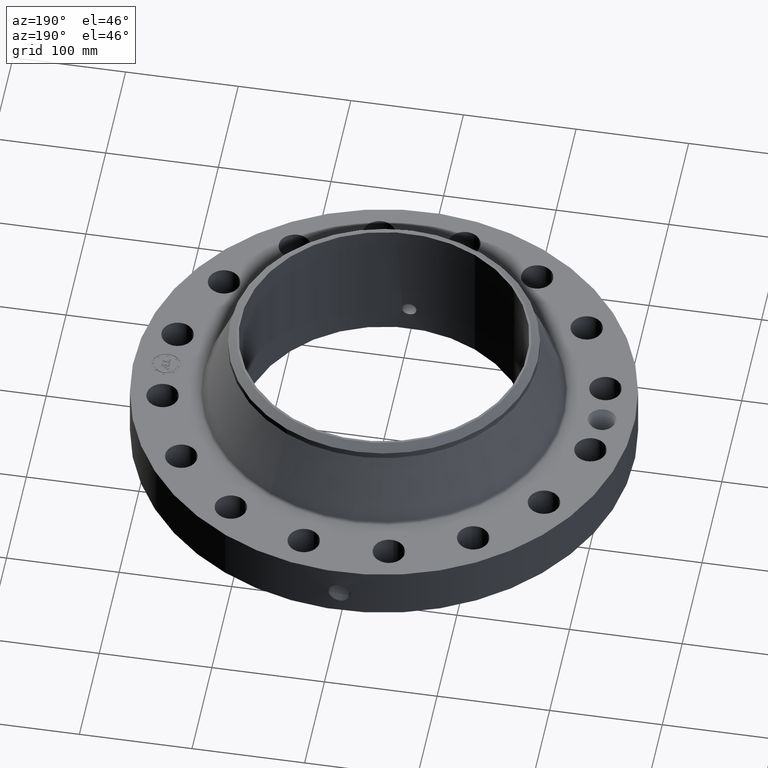
[diagram: clean part render]
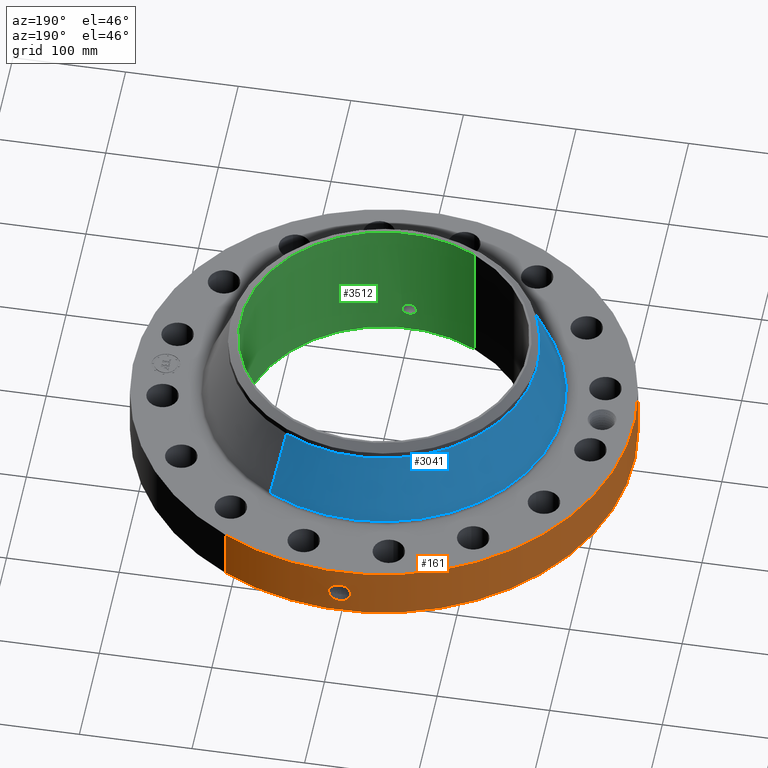
[diagram: same view with three faces highlighted in distinct colors, each labeled with its STEP entity id]
A machine part, auxiliary view with three faces highlighted in distinct colors.
Their STEP definitions:

[orange] entity #161 — the highlighted cylindrical surface (partial cylindrical patch) has radius 222.25 mm, axis along (0, 0, -1).
#38=AXIS2_PLACEMENT_3D('Cylinder Axis2P3D',#35,#36,#37) ;
#42=AXIS2_PLACEMENT_3D('Circle Axis2P3D',#40,#41,$) ;
#58=AXIS2_PLACEMENT_3D('Circle Axis2P3D',#56,#57,$) ;
#35=CARTESIAN_POINT('Axis2P3D Location',(0.,0.,2.34000000001)) ;
#40=CARTESIAN_POINT('Axis2P3D Location',(0.,0.,0.0600000000002)) ;
#44=CARTESIAN_POINT('Vertex',(-4.1949734628,-7.67884741657,0.0600000000002)) ;
#46=CARTESIAN_POINT('Vertex',(4.1949734628,7.67884741657,0.0600000000002)) ;
#49=CARTESIAN_POINT('Line Origine',(-4.1949734628,-7.67884741657,1.)) ;
#53=CARTESIAN_POINT('Vertex',(-4.1949734628,-7.67884741657,1.94000000001)) ;
#56=CARTESIAN_POINT('Axis2P3D Location',(0.,0.,1.94000000001)) ;
#60=CARTESIAN_POINT('Vertex',(4.1949734628,7.67884741657,1.94000000001)) ;
#63=CARTESIAN_POINT('Line Origine',(4.1949734628,7.67884741657,1.)) ;
#75=CARTESIAN_POINT('Control Point',(-0.0581089625369,8.74980704639,1.28931263406)) ;
#76=CARTESIAN_POINT('Control Point',(-0.0391512505224,8.74993294779,1.29247036247)) ;
#77=CARTESIAN_POINT('Control Point',(-0.0199353917113,8.74999839758,1.29407954697)) ;
#78=CARTESIAN_POINT('Control Point',(-0.000716211353166,8.74999997072,1.29411849893)) ;
#79=CARTESIAN_POINT('Vertex',(-0.0580953077663,8.74980738873,1.28931519353)) ;
#81=CARTESIAN_POINT('Vertex',(-0.000716087123921,8.74999997073,1.29411850938)) ;
#85=CARTESIAN_POINT('Control Point',(-0.0580952083203,8.74980713772,1.28931463772)) ;
#86=CARTESIAN_POINT('Control Point',(-0.0974883504075,8.74954558307,1.28448275707)) ;
#87=CARTESIAN_POINT('Control Point',(-0.136130062226,8.749012969,1.27246972712)) ;
#88=CARTESIAN_POINT('Control Point',(-0.171610206376,8.74831697744,1.25416185771)) ;
#89=CARTESIAN_POINT('Vertex',(-0.171610206376,8.74831697744,1.25416185771)) ;
#93=CARTESIAN_POINT('Control Point',(-0.0302669452421,8.74994765199,0.531133858009)) ;
#94=CARTESIAN_POINT('Control Point',(-0.0865126332238,8.74975309253,0.53828620631)) ;
#95=CARTESIAN_POINT('Control Point',(-0.141163784569,8.74911210098,0.55589964483)) ;
#96=CARTESIAN_POINT('Control Point',(-0.191479474324,8.74808366127,0.583467506959)) ;
#97=CARTESIAN_POINT('Control Point',(-0.26458521089,8.74612690907,0.64288390036)) ;
#98=CARTESIAN_POINT('Control Point',(-0.31652847164,8.74430507465,0.719208877328)) ;
#99=CARTESIAN_POINT('Control Point',(-0.333583708507,8.74365536413,0.751880832675)) ;
#100=CARTESIAN_POINT('Control Point',(-0.368975032969,8.74224702288,0.844035268653)) ;
#101=CARTESIAN_POINT('Control Point',(-0.375098714796,8.74194353724,0.942677587391)) ;
#102=CARTESIAN_POINT('Control Point',(-0.366946053504,8.7423150234,1.00432648181)) ;
#103=CARTESIAN_POINT('Control Point',(-0.333642919168,8.7437418217,1.10228712866)) ;
#104=CARTESIAN_POINT('Control Point',(-0.270966418077,8.74586349314,1.18272418419)) ;
#105=CARTESIAN_POINT('Control Point',(-0.241231340891,8.74676440562,1.21147018009)) ;
#106=CARTESIAN_POINT('Control Point',(-0.207766138597,8.74760772936,1.2355052793)) ;
#107=CARTESIAN_POINT('Control Point',(-0.171610206376,8.74831697744,1.25416185771)) ;
#108=CARTESIAN_POINT('Vertex',(-0.0302669452421,8.74994765199,0.531133858009)) ;
#112=CARTESIAN_POINT('Control Point',(-0.0302669452421,8.74994765199,0.531133858009)) ;
#113=CARTESIAN_POINT('Control Point',(-0.020172125313,8.74998257099,0.530866678197)) ;
#114=CARTESIAN_POINT('Control Point',(-0.0100722732255,8.75000000318,0.530947102164)) ;
#115=CARTESIAN_POINT('Control Point',(2.72878355316E-006,8.75000000003,0.531374667805)) ;
#116=CARTESIAN_POINT('Vertex',(2.72878354006E-006,8.75000000003,0.531374667805)) ;
#120=CARTESIAN_POINT('Control Point',(0.19328241765,8.74786499139,0.58620888473)) ;
#121=CARTESIAN_POINT('Control Point',(0.149259962889,8.74883765918,0.561336698193)) ;
#122=CARTESIAN_POINT('Control Point',(0.101168835307,8.74960564366,0.543535968943)) ;
#123=CARTESIAN_POINT('Control Point',(0.0508246751979,8.74999998419,0.533531464397)) ;
#124=CARTESIAN_POINT('Control Point',(2.72878350654E-006,8.75000000003,0.531374667805)) ;
#125=CARTESIAN_POINT('Vertex',(0.19328241765,8.74786499139,0.58620888473)) ;
#129=CARTESIAN_POINT('Control Point',(0.19328241765,8.74786499139,0.58620888473)) ;
#130=CARTESIAN_POINT('Control Point',(0.222320018162,8.74722341112,0.602614798421)) ;
#131=CARTESIAN_POINT('Control Point',(0.249702852817,8.74649784976,0.621904373411)) ;
#132=CARTESIAN_POINT('Control Point',(0.275025900467,8.74572453906,0.643907791783)) ;
#133=CARTESIAN_POINT('Control Point',(0.341959851625,8.74345928947,0.715550689514)) ;
#134=CARTESIAN_POINT('Control Point',(0.384721494892,8.74157999932,0.805221661432)) ;
#135=CARTESIAN_POINT('Control Point',(0.399824078796,8.74084549763,0.869596656484)) ;
#136=CARTESIAN_POINT('Control Point',(0.400741236125,8.74084616963,0.983900945025)) ;
#137=CARTESIAN_POINT('Control Point',(0.360682761481,8.74259093649,1.08862858385)) ;
#138=CARTESIAN_POINT('Control Point',(0.336434934045,8.74359787656,1.13009590905)) ;
#139=CARTESIAN_POINT('Control Point',(0.267541246711,8.74613174572,1.21398892366)) ;
#140=CARTESIAN_POINT('Control Point',(0.174601876315,8.74851033483,1.26870826522)) ;
#141=CARTESIAN_POINT('Control Point',(0.117427738829,8.74951483398,1.28858356661)) ;
#142=CARTESIAN_POINT('Control Point',(0.0582715844915,8.75000017228,1.29701111921)) ;
#143=CARTESIAN_POINT('Control Point',(-2.58579355255E-005,8.75,1.29415298432)) ;
#144=CARTESIAN_POINT('Vertex',(-2.58579355366E-005,8.75,1.29415298432)) ;
#148=CARTESIAN_POINT('Control Point',(-0.000716087113735,8.74999997073,1.29411850936)) ;
#149=CARTESIAN_POINT('Control Point',(-0.000370996570186,8.74999999898,1.2941360633)) ;
#150=CARTESIAN_POINT('Control Point',(-2.58579413603E-005,8.75,1.29415298432)) ;
#36=DIRECTION('Axis2P3D Direction',(0.,0.,-0.0393700787402)) ;
#37=DIRECTION('Axis2P3D XDirection',(0.0188750212049,0.0345504945626,0.)) ;
#41=DIRECTION('Axis2P3D Direction',(0.,0.,-0.0393700787402)) ;
#50=DIRECTION('Vector Direction',(0.,0.,-0.0393700787402)) ;
#57=DIRECTION('Axis2P3D Direction',(0.,0.,-0.0393700787402)) ;
#64=DIRECTION('Vector Direction',(0.,0.,-0.0393700787402)) ;
#51=VECTOR('Line Direction',#50,0.0393700787402) ;
#65=VECTOR('Line Direction',#64,0.0393700787402) ;
#69=ORIENTED_EDGE('',*,*,#48,.F.) ;
#70=ORIENTED_EDGE('',*,*,#55,.T.) ;
#71=ORIENTED_EDGE('',*,*,#62,.T.) ;
#72=ORIENTED_EDGE('',*,*,#67,.F.) ;
#153=ORIENTED_EDGE('',*,*,#83,.F.) ;
#154=ORIENTED_EDGE('',*,*,#91,.T.) ;
#155=ORIENTED_EDGE('',*,*,#110,.F.) ;
#156=ORIENTED_EDGE('',*,*,#118,.T.) ;
#157=ORIENTED_EDGE('',*,*,#127,.F.) ;
#158=ORIENTED_EDGE('',*,*,#146,.T.) ;
#159=ORIENTED_EDGE('',*,*,#151,.F.) ;
#160=FACE_BOUND('',#152,.T.) ;
#161=ADVANCED_FACE('PartBody',(#73,#160),#39,.T.) ;
#74=B_SPLINE_CURVE_WITH_KNOTS('',3,(#75,#76,#77,#78),.UNSPECIFIED.,.F.,.U.,(4,4),(4.38916387395,6.52135751579),.UNSPECIFIED.) ;
#84=B_SPLINE_CURVE_WITH_KNOTS('',3,(#85,#86,#87,#88),.UNSPECIFIED.,.F.,.U.,(4,4),(0.,4.45941834661),.UNSPECIFIED.) ;
#92=B_SPLINE_CURVE_WITH_KNOTS('',5,(#93,#94,#95,#96,#97,#98,#99,#100,#101,#102,#103,#104,#105,#106,#107),.UNSPECIFIED.,.F.,.U.,(6,3,3,3,6),(0.,9.8538926904,16.4310811967,27.5941599194,35.1680876139),.UNSPECIFIED.) ;
#111=B_SPLINE_CURVE_WITH_KNOTS('',3,(#112,#113,#114,#115),.UNSPECIFIED.,.F.,.U.,(4,4),(0.,1.05295553536),.UNSPECIFIED.) ;
#119=B_SPLINE_CURVE_WITH_KNOTS('',4,(#120,#121,#122,#123,#124),.UNSPECIFIED.,.F.,.U.,(5,5),(0.,7.08198368374),.UNSPECIFIED.) ;
#128=B_SPLINE_CURVE_WITH_KNOTS('',5,(#129,#130,#131,#132,#133,#134,#135,#136,#137,#138,#139,#140,#141,#142,#143),.UNSPECIFIED.,.F.,.U.,(6,3,3,3,6),(0.,5.83917379531,17.1007627877,25.5637753013,36.4607761793),.UNSPECIFIED.) ;
#147=B_SPLINE_CURVE_WITH_KNOTS('',2,(#148,#149,#150),.UNSPECIFIED.,.F.,.U.,(3,3),(1.04631464727,1.07212007524),.UNSPECIFIED.) ;
#43=CIRCLE('generated circle',#42,8.75000000003) ;
#59=CIRCLE('generated circle',#58,8.75000000003) ;
#39=CYLINDRICAL_SURFACE('generated cylinder',#38,8.75000000003) ;
#48=EDGE_CURVE('',#45,#47,#43,.T.) ;
#55=EDGE_CURVE('',#45,#54,#52,.F.) ;
#62=EDGE_CURVE('',#54,#61,#59,.T.) ;
#67=EDGE_CURVE('',#47,#61,#66,.F.) ;
#83=EDGE_CURVE('',#80,#82,#74,.T.) ;
#91=EDGE_CURVE('',#80,#90,#84,.T.) ;
#110=EDGE_CURVE('',#109,#90,#92,.T.) ;
#118=EDGE_CURVE('',#109,#117,#111,.T.) ;
#127=EDGE_CURVE('',#126,#117,#119,.T.) ;
#146=EDGE_CURVE('',#126,#145,#128,.T.) ;
#151=EDGE_CURVE('',#82,#145,#147,.T.) ;
#68=EDGE_LOOP('',(#69,#70,#71,#72)) ;
#152=EDGE_LOOP('',(#153,#154,#155,#156,#157,#158,#159)) ;
#73=FACE_OUTER_BOUND('',#68,.T.) ;
#52=LINE('Line',#49,#51) ;
#66=LINE('Line',#63,#65) ;
#45=VERTEX_POINT('',#44) ;
#47=VERTEX_POINT('',#46) ;
#54=VERTEX_POINT('',#53) ;
#61=VERTEX_POINT('',#60) ;
#80=VERTEX_POINT('',#79) ;
#82=VERTEX_POINT('',#81) ;
#90=VERTEX_POINT('',#89) ;
#109=VERTEX_POINT('',#108) ;
#117=VERTEX_POINT('',#116) ;
#126=VERTEX_POINT('',#125) ;
#145=VERTEX_POINT('',#144) ;

[blue] entity #3041 — the highlighted conical surface has half-angle 22.262 deg.
#2351=AXIS2_PLACEMENT_3D('Circle Axis2P3D',#2349,#2350,$) ;
#3002=AXIS2_PLACEMENT_3D('Cone Axis2P3D',#2999,#3000,#3001) ;
#3032=AXIS2_PLACEMENT_3D('Circle Axis2P3D',#3030,#3031,$) ;
#2327=CARTESIAN_POINT('Vertex',(3.01054662509,5.51076863287,2.01453967835)) ;
#2334=CARTESIAN_POINT('Vertex',(-3.01054662509,-5.51076863287,2.01453967835)) ;
#2349=CARTESIAN_POINT('Axis2P3D Location',(0.,0.,2.01453967835)) ;
#2999=CARTESIAN_POINT('Axis2P3D Location',(0.,0.,4.22412462484)) ;
#3004=CARTESIAN_POINT('Line Origine',(2.79372944755,5.11388745153,3.11933215159)) ;
#3008=CARTESIAN_POINT('Vertex',(2.57691227001,4.71700627018,4.22412462484)) ;
#3015=CARTESIAN_POINT('Vertex',(-2.57691227001,-4.71700627018,4.22412462484)) ;
#3018=CARTESIAN_POINT('Line Origine',(-2.79372944755,-5.11388745153,3.11933215159)) ;
#3030=CARTESIAN_POINT('Axis2P3D Location',(0.,0.,4.22412462484)) ;
#2350=DIRECTION('Axis2P3D Direction',(0.,0.,-0.0393700787402)) ;
#3000=DIRECTION('Axis2P3D Direction',(0.,0.,-0.0393700787402)) ;
#3001=DIRECTION('Axis2P3D XDirection',(-0.0188750212049,-0.0345504945626,0.)) ;
#3005=DIRECTION('Vector Direction',(0.00715053779388,0.0130889716353,-0.0364355833053)) ;
#3019=DIRECTION('Vector Direction',(-0.00715053779388,-0.0130889716353,-0.0364355833053)) ;
#3031=DIRECTION('Axis2P3D Direction',(0.,0.,-0.0393700787402)) ;
#3006=VECTOR('Line Direction',#3005,0.0393700787402) ;
#3020=VECTOR('Line Direction',#3019,0.0393700787402) ;
#3036=ORIENTED_EDGE('',*,*,#2353,.F.) ;
#3037=ORIENTED_EDGE('',*,*,#3022,.T.) ;
#3038=ORIENTED_EDGE('',*,*,#3034,.T.) ;
#3039=ORIENTED_EDGE('',*,*,#3010,.F.) ;
#3041=ADVANCED_FACE('PartBody',(#3040),#3003,.T.) ;
#2352=CIRCLE('generated circle',#2351,6.27948739205) ;
#3033=CIRCLE('generated circle',#3032,5.37500000002) ;
#3003=CONICAL_SURFACE('Cone',#3002,5.37500000002,0.388538239413) ;
#2353=EDGE_CURVE('',#2335,#2328,#2352,.T.) ;
#3010=EDGE_CURVE('',#2328,#3009,#3007,.F.) ;
#3022=EDGE_CURVE('',#2335,#3016,#3021,.F.) ;
#3034=EDGE_CURVE('',#3016,#3009,#3033,.T.) ;
#3035=EDGE_LOOP('',(#3036,#3037,#3038,#3039)) ;
#3040=FACE_OUTER_BOUND('',#3035,.T.) ;
#3007=LINE('Line',#3004,#3006) ;
#3021=LINE('Line',#3018,#3020) ;
#2328=VERTEX_POINT('',#2327) ;
#2335=VERTEX_POINT('',#2334) ;
#3009=VERTEX_POINT('',#3008) ;
#3016=VERTEX_POINT('',#3015) ;

[green] entity #3512 — the highlighted cylindrical surface (partial cylindrical patch) has radius 127.254 mm, axis along (0, 0, -1).
#2728=AXIS2_PLACEMENT_3D('Circle Axis2P3D',#2726,#2727,$) ;
#3443=AXIS2_PLACEMENT_3D('Cylinder Axis2P3D',#3440,#3441,#3442) ;
#3447=AXIS2_PLACEMENT_3D('Circle Axis2P3D',#3445,#3446,$) ;
#2726=CARTESIAN_POINT('Axis2P3D Location',(0.,0.,0.)) ;
#2730=CARTESIAN_POINT('Vertex',(2.40192194842,4.39668863509,-1.20288730857E-014)) ;
#2732=CARTESIAN_POINT('Vertex',(-2.40192194842,-4.39668863509,-1.20288730857E-014)) ;
#3440=CARTESIAN_POINT('Axis2P3D Location',(0.,0.,2.34000000001)) ;
#3445=CARTESIAN_POINT('Axis2P3D Location',(0.,0.,4.68000000002)) ;
#3449=CARTESIAN_POINT('Vertex',(2.40192194842,4.39668863509,4.68000000002)) ;
#3451=CARTESIAN_POINT('Vertex',(-2.40192194842,-4.39668863509,4.68000000002)) ;
#3454=CARTESIAN_POINT('Line Origine',(2.40192194842,4.39668863509,2.34000000001)) ;
#3459=CARTESIAN_POINT('Line Origine',(-2.40192194842,-4.39668863509,2.34000000001)) ;
#3471=CARTESIAN_POINT('Control Point',(0.219395640473,-5.0051938577,0.820143615352)) ;
#3472=CARTESIAN_POINT('Control Point',(0.206921726757,-5.00574063418,0.797310269452)) ;
#3473=CARTESIAN_POINT('Control Point',(0.191478298907,-5.00637864121,0.776101382643)) ;
#3474=CARTESIAN_POINT('Control Point',(0.173345318097,-5.00705858161,0.757029874184)) ;
#3475=CARTESIAN_POINT('Control Point',(0.112137495196,-5.00902515689,0.707551556564)) ;
#3476=CARTESIAN_POINT('Control Point',(0.0349834941422,-5.0103028337,0.684026843959)) ;
#3477=CARTESIAN_POINT('Control Point',(-0.019558609398,-5.01039831415,0.68238771903)) ;
#3478=CARTESIAN_POINT('Control Point',(-0.12414346384,-5.00899203585,0.707529183815)) ;
#3479=CARTESIAN_POINT('Control Point',(-0.203188052536,-5.00608110487,0.780438638471)) ;
#3480=CARTESIAN_POINT('Control Point',(-0.232165482179,-5.00464790126,0.826652440026)) ;
#3481=CARTESIAN_POINT('Control Point',(-0.255832984999,-5.00346793306,0.90480906028)) ;
#3482=CARTESIAN_POINT('Control Point',(-0.248296103087,-5.00384337312,0.984198516426)) ;
#3483=CARTESIAN_POINT('Control Point',(-0.242062009703,-5.00415848896,1.01078235485)) ;
#3484=CARTESIAN_POINT('Control Point',(-0.232323664139,-5.00462717594,1.03619179607)) ;
#3485=CARTESIAN_POINT('Control Point',(-0.219395640473,-5.0051938577,1.05985638466)) ;
#3486=CARTESIAN_POINT('Vertex',(0.219395640473,-5.0051938577,0.820143615352)) ;
#3488=CARTESIAN_POINT('Vertex',(-0.219395640473,-5.0051938577,1.05985638466)) ;
#3492=CARTESIAN_POINT('Control Point',(-0.219395640473,-5.0051938577,1.05985638466)) ;
#3493=CARTESIAN_POINT('Control Point',(-0.20692172676,-5.00574063418,1.08268973055)) ;
#3494=CARTESIAN_POINT('Control Point',(-0.191478298916,-5.00637864121,1.10389861735)) ;
#3495=CARTESIAN_POINT('Control Point',(-0.173345318087,-5.00705858161,1.12297012583)) ;
#3496=CARTESIAN_POINT('Control Point',(-0.11213749519,-5.00902515689,1.17244844345)) ;
#3497=CARTESIAN_POINT('Control Point',(-0.0349834941428,-5.0103028337,1.19597315605)) ;
#3498=CARTESIAN_POINT('Control Point',(0.0195586093949,-5.01039831415,1.19761228098)) ;
#3499=CARTESIAN_POINT('Control Point',(0.124143463848,-5.00899203585,1.17247081619)) ;
#3500=CARTESIAN_POINT('Control Point',(0.203188052551,-5.00608110487,1.09956136152)) ;
#3501=CARTESIAN_POINT('Control Point',(0.232165482173,-5.00464790126,1.05334756)) ;
#3502=CARTESIAN_POINT('Control Point',(0.255832984997,-5.00346793306,0.97519093975)) ;
#3503=CARTESIAN_POINT('Control Point',(0.24829610309,-5.00384337312,0.895801483604)) ;
#3504=CARTESIAN_POINT('Control Point',(0.242062009695,-5.00415848896,0.86921764514)) ;
#3505=CARTESIAN_POINT('Control Point',(0.232323664134,-5.00462717595,0.843808203929)) ;
#3506=CARTESIAN_POINT('Control Point',(0.219395640473,-5.0051938577,0.820143615352)) ;
#2727=DIRECTION('Axis2P3D Direction',(0.,0.,-0.0393700787402)) ;
#3441=DIRECTION('Axis2P3D Direction',(0.,0.,-0.0393700787402)) ;
#3442=DIRECTION('Axis2P3D XDirection',(-0.0188750212049,-0.0345504945626,0.)) ;
#3446=DIRECTION('Axis2P3D Direction',(0.,0.,-0.0393700787402)) ;
#3455=DIRECTION('Vector Direction',(0.,0.,-0.0393700787402)) ;
#3460=DIRECTION('Vector Direction',(0.,0.,-0.0393700787402)) ;
#3456=VECTOR('Line Direction',#3455,0.0393700787402) ;
#3461=VECTOR('Line Direction',#3460,0.0393700787402) ;
#3465=ORIENTED_EDGE('',*,*,#3453,.F.) ;
#3466=ORIENTED_EDGE('',*,*,#3458,.T.) ;
#3467=ORIENTED_EDGE('',*,*,#2734,.T.) ;
#3468=ORIENTED_EDGE('',*,*,#3463,.F.) ;
#3509=ORIENTED_EDGE('',*,*,#3490,.F.) ;
#3510=ORIENTED_EDGE('',*,*,#3507,.F.) ;
#3511=FACE_BOUND('',#3508,.T.) ;
#3512=ADVANCED_FACE('PartBody',(#3469,#3511),#3444,.F.) ;
#3470=B_SPLINE_CURVE_WITH_KNOTS('',5,(#3471,#3472,#3473,#3474,#3475,#3476,#3477,#3478,#3479,#3480,#3481,#3482,#3483,#3484,#3485),.UNSPECIFIED.,.F.,.U.,(6,3,3,3,6),(0.,4.67408027319,14.022098218,23.3720849024,28.2163239888),.UNSPECIFIED.) ;
#3491=B_SPLINE_CURVE_WITH_KNOTS('',5,(#3492,#3493,#3494,#3495,#3496,#3497,#3498,#3499,#3500,#3501,#3502,#3503,#3504,#3505,#3506),.UNSPECIFIED.,.F.,.U.,(6,3,3,3,6),(0.,4.67408027189,14.0220982169,23.3720849031,28.2163239876),.UNSPECIFIED.) ;
#2729=CIRCLE('generated circle',#2728,5.01000000002) ;
#3448=CIRCLE('generated circle',#3447,5.01000000002) ;
#3444=CYLINDRICAL_SURFACE('generated cylinder',#3443,5.01000000002) ;
#2734=EDGE_CURVE('',#2731,#2733,#2729,.T.) ;
#3453=EDGE_CURVE('',#3450,#3452,#3448,.T.) ;
#3458=EDGE_CURVE('',#3450,#2731,#3457,.T.) ;
#3463=EDGE_CURVE('',#3452,#2733,#3462,.T.) ;
#3490=EDGE_CURVE('',#3487,#3489,#3470,.T.) ;
#3507=EDGE_CURVE('',#3489,#3487,#3491,.T.) ;
#3464=EDGE_LOOP('',(#3465,#3466,#3467,#3468)) ;
#3508=EDGE_LOOP('',(#3509,#3510)) ;
#3469=FACE_OUTER_BOUND('',#3464,.T.) ;
#3457=LINE('Line',#3454,#3456) ;
#3462=LINE('Line',#3459,#3461) ;
#2731=VERTEX_POINT('',#2730) ;
#2733=VERTEX_POINT('',#2732) ;
#3450=VERTEX_POINT('',#3449) ;
#3452=VERTEX_POINT('',#3451) ;
#3487=VERTEX_POINT('',#3486) ;
#3489=VERTEX_POINT('',#3488) ;